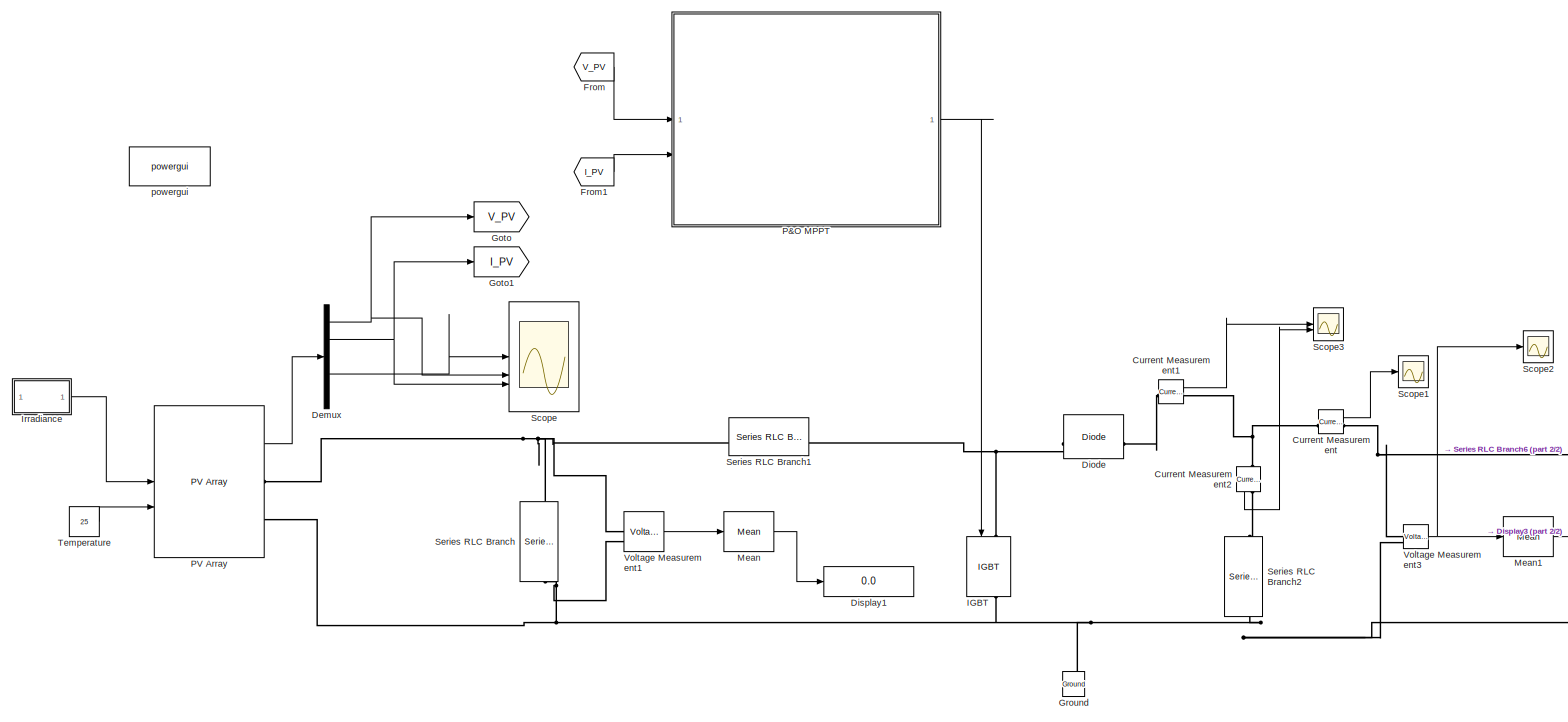
[diagram: root canvas - part 1/2, most of the canvas]
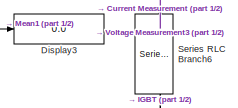
[diagram: root canvas - part 2/2, bottom right region]
MODEL slx_ca88354ca94a
KIND model
CONFIG AbsTol = auto
CONFIG EnableMultiTasking = off
CONFIG FixedStep = auto
CONFIG MaxStep = auto
CONFIG MinStep = auto
CONFIG RelTol = 1e-3
CONFIG SampleTimeConstraint = Unconstrained
CONFIG SolverName = VariableStepAuto
CONFIG StartTime = 0.0
CONFIG StopTime = 10.0
BLOCK [Reference] Current Measurement  REF=spsCurrentMeasurementLib/Current Measurement
  LibrarySourceBlock = sps_lib/Sensors and Measurements/Current Measurement
  SourceBlock = spsCurrentMeasurementLib/Current Measurement
  SourceType = Current Measurement
  UserDataPersistent = on
BLOCK [Reference] Current Measurement1  REF=spsCurrentMeasurementLib/Current Measurement
  LibrarySourceBlock = sps_lib/Sensors and Measurements/Current Measurement
  SourceBlock = spsCurrentMeasurementLib/Current Measurement
  SourceType = Current Measurement
  UserDataPersistent = on
BLOCK [Reference] Current Measurement2  REF=spsCurrentMeasurementLib/Current Measurement
  LibrarySourceBlock = sps_lib/Sensors and Measurements/Current Measurement
  NameLocation = left
  SourceBlock = spsCurrentMeasurementLib/Current Measurement
  SourceType = Current Measurement
  UserDataPersistent = on
BLOCK [Demux] Demux
  Outputs = 5
BLOCK [Reference] Diode  REF=spsDiodeLib/Diode
  LibrarySourceBlock = sps_lib/Power Electronics/Diode
  SourceBlock = spsDiodeLib/Diode
  SourceType = Diode
BLOCK [Display] Display1
  Decimation = 1
BLOCK [Display] Display3
  Decimation = 1
BLOCK [From] From
  GotoTag = V_PV
BLOCK [From] From1
  GotoTag = I_PV
BLOCK [Goto] Goto
  GotoTag = V_PV
BLOCK [Goto] Goto1
  GotoTag = I_PV
BLOCK [Reference] Ground  REF=spsGroundLib/Ground
  LibrarySourceBlock = sps_lib/Utilities/Ground
  NameLocation = right
  SourceBlock = spsGroundLib/Ground
  SourceType = Ground
BLOCK [Reference] IGBT  REF=spsIGBTLib/IGBT
  LibrarySourceBlock = sps_lib/Power Electronics/IGBT
  NameLocation = left
  SourceBlock = spsIGBTLib/IGBT
  SourceType = IGBT
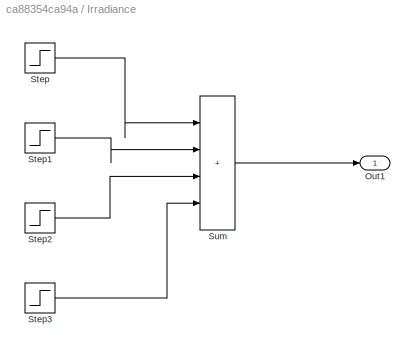
BLOCK [SubSystem] Irradiance
BLOCK [Outport] Irradiance/Out1
BLOCK [Step] Irradiance/Step
  After = 1200
  Before = 1200
  SampleTime = 0
  Time = 0
BLOCK [Step] Irradiance/Step1
  After = -300
  SampleTime = 0
  Time = 3
BLOCK [Step] Irradiance/Step2
  After = -250
  SampleTime = 0
  Time = 5
BLOCK [Step] Irradiance/Step3
  After = 350
  SampleTime = 0
  Time = 8
BLOCK [Sum] Irradiance/Sum
  IconShape = rectangular
  Inputs = |++++
BLOCK [Reference] Mean  REF=spsMeanLib/Mean
  LibrarySourceBlock = sps_lib/Sensors and Measurements/Mean
  SourceBlock = spsMeanLib/Mean
  SourceType = Mean
BLOCK [Reference] Mean1  REF=spsMeanLib/Mean
  LibrarySourceBlock = sps_lib/Sensors and Measurements/Mean
  SourceBlock = spsMeanLib/Mean
  SourceType = Mean
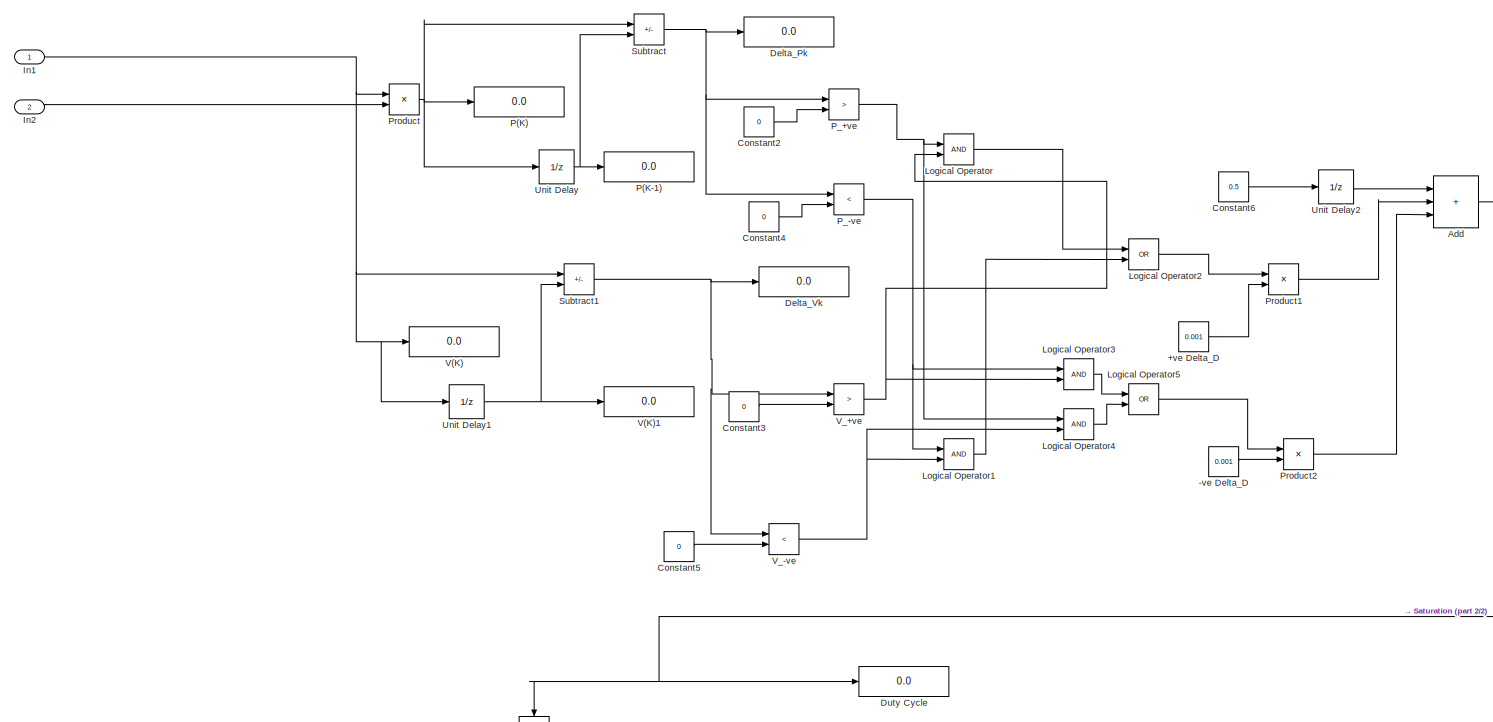
[diagram: P&O MPPT - part 1/2, full width, top band]
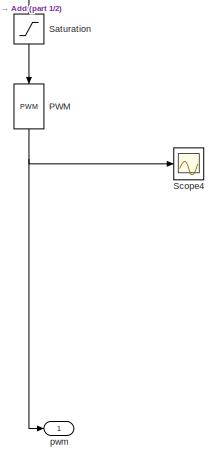
[diagram: P&O MPPT - part 2/2, bottom center region]
BLOCK [SubSystem] P&O MPPT
BLOCK [Constant] P&O MPPT/+ve Delta_D
  Value = 0.001
BLOCK [Constant] P&O MPPT/-ve Delta_D
  Value = 0.001
BLOCK [Sum] P&O MPPT/Add
  IconShape = rectangular
  Inputs = +++
BLOCK [Constant] P&O MPPT/Constant2
  Value = 0
BLOCK [Constant] P&O MPPT/Constant3
  Value = 0
BLOCK [Constant] P&O MPPT/Constant4
  Value = 0
BLOCK [Constant] P&O MPPT/Constant5
  Value = 0
BLOCK [Constant] P&O MPPT/Constant6
  Value = 0.5
BLOCK [Display] P&O MPPT/Delta_Pk
  Decimation = 1
BLOCK [Display] P&O MPPT/Delta_Vk
  Decimation = 1
BLOCK [Display] P&O MPPT/Duty Cycle
  Decimation = 1
BLOCK [Inport] P&O MPPT/In1
BLOCK [Inport] P&O MPPT/In2
  Port = 2
BLOCK [Logic] P&O MPPT/Logical Operator
  AllPortsSameDT = off
  OutDataTypeStr = boolean
BLOCK [Logic] P&O MPPT/Logical Operator1
  AllPortsSameDT = off
  OutDataTypeStr = boolean
BLOCK [Logic] P&O MPPT/Logical Operator2
  AllPortsSameDT = off
  Operator = OR
  OutDataTypeStr = boolean
BLOCK [Logic] P&O MPPT/Logical Operator3
  AllPortsSameDT = off
  OutDataTypeStr = boolean
BLOCK [Logic] P&O MPPT/Logical Operator4
  AllPortsSameDT = off
  OutDataTypeStr = boolean
BLOCK [Logic] P&O MPPT/Logical Operator5
  AllPortsSameDT = off
  Operator = OR
  OutDataTypeStr = boolean
BLOCK [Display] P&O MPPT/P(K)
  Decimation = 1
BLOCK [Display] P&O MPPT/P(K-1)
  Decimation = 1
BLOCK [Reference] P&O MPPT/PWM  REF=simulink/Discontinuities/PWM
  DisableCoverage = on
  NameLocation = left
  SourceBlock = simulink/Discontinuities/PWM
  SourceType = PWM
BLOCK [RelationalOperator] P&O MPPT/P_+ve
  InputSameDT = off
  Operator = >
  OutDataTypeStr = boolean
  RndMeth = Simplest
BLOCK [RelationalOperator] P&O MPPT/P_-ve
  InputSameDT = off
  Operator = <
  OutDataTypeStr = boolean
  RndMeth = Simplest
BLOCK [Product] P&O MPPT/Product
BLOCK [Product] P&O MPPT/Product1
BLOCK [Product] P&O MPPT/Product2
BLOCK [Saturate] P&O MPPT/Saturation
  LowerLimit = 0.1
  NameLocation = left
  UpperLimit = 0.9
BLOCK [Scope] P&O MPPT/Scope4
  Floating = off
  NumInputPorts = 1
  ScopeSpecificationString = Simulink.scopes.TimeScopeBlockCfg('CurrentConfiguration', extmgr.ConfigurationSet(extmgr.Configuration('Core','General UI',true),extmgr.Configuration('Core','Source UI',true),extmgr.Configuration('Sources','WiredSimulink',true),extmgr.Configuration('Visuals','Time Domain',true,'SerializedDisplays',{struct('MinYLimReal','-0.125','MaxYLimReal','1.125','YLabelReal','','MinYLimMag','0.00000','MaxYLimM...<+1526ch>
BLOCK [Sum] P&O MPPT/Subtract
  IconShape = rectangular
  Inputs = +-
BLOCK [Sum] P&O MPPT/Subtract1
  IconShape = rectangular
  Inputs = +-
BLOCK [UnitDelay] P&O MPPT/Unit Delay
  HasFrameUpgradeWarning = on
  SampleTime = -1
BLOCK [UnitDelay] P&O MPPT/Unit Delay1
  HasFrameUpgradeWarning = on
  SampleTime = -1
BLOCK [UnitDelay] P&O MPPT/Unit Delay2
  HasFrameUpgradeWarning = on
  SampleTime = -1
BLOCK [Display] P&O MPPT/V(K)
  Decimation = 1
BLOCK [Display] P&O MPPT/V(K)1
  Decimation = 1
BLOCK [RelationalOperator] P&O MPPT/V_+ve
  InputSameDT = off
  Operator = >
  OutDataTypeStr = boolean
  RndMeth = Simplest
BLOCK [RelationalOperator] P&O MPPT/V_-ve
  InputSameDT = off
  Operator = <
  OutDataTypeStr = boolean
  RndMeth = Simplest
BLOCK [Outport] P&O MPPT/pwm
BLOCK [Reference] PV Array  REF=spsPVArrayLib/PV Array
  LibrarySourceBlock = sps_lib/Sources/PV Array
  SourceBlock = spsPVArrayLib/PV Array
  SourceType = PV array
BLOCK [Scope] Scope
  Floating = off
  NumInputPorts = 5
  ScopeSpecificationString = Simulink.scopes.TimeScopeBlockCfg('CurrentConfiguration', extmgr.ConfigurationSet(extmgr.Configuration('Core','General UI',true),extmgr.Configuration('Core','Source UI',true),extmgr.Configuration('Sources','WiredSimulink',true,'DataLoggingVariableName','ScopeData1'),extmgr.Configuration('Visuals','Time Domain',true,'SerializedDisplays',{struct('MinYLimReal','581.25','MaxYLimReal','1268.75','YLabel...<+3397ch>
BLOCK [Scope] Scope1
  Floating = off
  NumInputPorts = 1
  ScopeSpecificationString = Simulink.scopes.TimeScopeBlockCfg('CurrentConfiguration', extmgr.ConfigurationSet(extmgr.Configuration('Core','General UI',true),extmgr.Configuration('Core','Source UI',true),extmgr.Configuration('Sources','WiredSimulink',true,'DataLoggingVariableName','ScopeData2'),extmgr.Configuration('Visuals','Time Domain',true,'SerializedDisplays',{struct('MinYLimReal','-3.53623','MaxYLimReal','31.82607','YLa...<+1571ch>
BLOCK [Scope] Scope2
  Floating = off
  NumInputPorts = 1
  ScopeSpecificationString = Simulink.scopes.TimeScopeBlockCfg('CurrentConfiguration', extmgr.ConfigurationSet(extmgr.Configuration('Core','General UI',true),extmgr.Configuration('Core','Source UI',true),extmgr.Configuration('Sources','WiredSimulink',true,'DataLoggingVariableName','ScopeData3'),extmgr.Configuration('Visuals','Time Domain',true,'SerializedDisplays',{struct('MinYLimReal','-29.10486','MaxYLimReal','261.94372','Y...<+1551ch>
BLOCK [Scope] Scope3
  Floating = off
  NumInputPorts = 2
  ScopeSpecificationString = Simulink.scopes.TimeScopeBlockCfg('CurrentConfiguration', extmgr.ConfigurationSet(extmgr.Configuration('Core','General UI',true),extmgr.Configuration('Core','Source UI',true),extmgr.Configuration('Sources','WiredSimulink',true,'DataLoggingVariableName','ScopeData4'),extmgr.Configuration('Visuals','Time Domain',true,'SerializedDisplays',{struct('MinYLimReal','-1.13646','MaxYLimReal','8.81548','YLab...<+2426ch>
BLOCK [Reference] Series RLC Branch  REF=spsSeriesRLCBranchLib/Series RLC Branch
  LibrarySourceBlock = sps_lib/Passives/Series RLC Branch
  NameLocation = left
  SourceBlock = spsSeriesRLCBranchLib/Series RLC Branch
  SourceType = Series RLC Branch
BLOCK [Reference] Series RLC Branch1  REF=spsSeriesRLCBranchLib/Series RLC Branch
  LibrarySourceBlock = sps_lib/Passives/Series RLC Branch
  SourceBlock = spsSeriesRLCBranchLib/Series RLC Branch
  SourceType = Series RLC Branch
BLOCK [Reference] Series RLC Branch2  REF=spsSeriesRLCBranchLib/Series RLC Branch
  LibrarySourceBlock = sps_lib/Passives/Series RLC Branch
  NameLocation = left
  SourceBlock = spsSeriesRLCBranchLib/Series RLC Branch
  SourceType = Series RLC Branch
BLOCK [Reference] Series RLC Branch6  REF=spsSeriesRLCBranchLib/Series RLC Branch
  LibrarySourceBlock = sps_lib/Passives/Series RLC Branch
  NameLocation = left
  SourceBlock = spsSeriesRLCBranchLib/Series RLC Branch
  SourceType = Series RLC Branch
BLOCK [Constant] Temperature
  Value = 25
BLOCK [Reference] Voltage Measurement1  REF=spsVoltageMeasurementLib/Voltage Measurement
  LibrarySourceBlock = sps_lib/Sensors and Measurements/Voltage Measurement
  SourceBlock = spsVoltageMeasurementLib/Voltage Measurement
  SourceType = Voltage Measurement
  UserDataPersistent = on
BLOCK [Reference] Voltage Measurement3  REF=spsVoltageMeasurementLib/Voltage Measurement
  LibrarySourceBlock = sps_lib/Sensors and Measurements/Voltage Measurement
  SourceBlock = spsVoltageMeasurementLib/Voltage Measurement
  SourceType = Voltage Measurement
  UserDataPersistent = on
BLOCK [Reference] powergui  REF=sps_lib/powergui
  LibrarySourceBlock = sps_lib/powergui
  Priority = 1
  SourceBlock = sps_lib/powergui
  SourceType = PSB option menu block
LINE Current Measurement1:1 -> Scope3:1
LINE Current Measurement2:1 -> Scope3:2
LINE Current Measurement:1 -> Scope1:1
NET Demux:1 -> Goto:1, Scope:2
NET Demux:2 -> Goto1:1, Scope:3
LINE Demux:4 -> Scope:1
LINE From1:1 -> P&O MPPT:2
LINE From:1 -> P&O MPPT:1
LINE Irradiance/Step1:1 -> Irradiance/Sum:2
LINE Irradiance/Step2:1 -> Irradiance/Sum:3
LINE Irradiance/Step3:1 -> Irradiance/Sum:4
LINE Irradiance/Step:1 -> Irradiance/Sum:1
LINE Irradiance/Sum:1 -> Irradiance/Out1:1
LINE Irradiance:1 -> PV Array:1
LINE Mean1:1 -> Display3:1
LINE Mean:1 -> Display1:1
LINE P&O MPPT/+ve Delta_D:1 -> P&O MPPT/Product1:2
LINE P&O MPPT/-ve Delta_D:1 -> P&O MPPT/Product2:2
NET P&O MPPT/Add:1 -> P&O MPPT/Duty Cycle:1, P&O MPPT/Saturation:1
LINE P&O MPPT/Constant2:1 -> P&O MPPT/P_+ve:2
LINE P&O MPPT/Constant3:1 -> P&O MPPT/V_+ve:2
LINE P&O MPPT/Constant4:1 -> P&O MPPT/P_-ve:2
LINE P&O MPPT/Constant5:1 -> P&O MPPT/V_-ve:2
LINE P&O MPPT/Constant6:1 -> P&O MPPT/Unit Delay2:1
NET P&O MPPT/In1:1 -> P&O MPPT/Product:1, P&O MPPT/Subtract1:1, P&O MPPT/Unit Delay1:1, P&O MPPT/V(K):1
LINE P&O MPPT/In2:1 -> P&O MPPT/Product:2
LINE P&O MPPT/Logical Operator1:1 -> P&O MPPT/Logical Operator2:2
LINE P&O MPPT/Logical Operator2:1 -> P&O MPPT/Product1:1
LINE P&O MPPT/Logical Operator3:1 -> P&O MPPT/Logical Operator5:1
LINE P&O MPPT/Logical Operator4:1 -> P&O MPPT/Logical Operator5:2
LINE P&O MPPT/Logical Operator5:1 -> P&O MPPT/Product2:1
LINE P&O MPPT/Logical Operator:1 -> P&O MPPT/Logical Operator2:1
NET P&O MPPT/PWM:1 -> P&O MPPT/Scope4:1, P&O MPPT/pwm:1
NET P&O MPPT/P_+ve:1 -> P&O MPPT/Logical Operator4:1, P&O MPPT/Logical Operator:1
NET P&O MPPT/P_-ve:1 -> P&O MPPT/Logical Operator1:1, P&O MPPT/Logical Operator3:1
LINE P&O MPPT/Product1:1 -> P&O MPPT/Add:2
LINE P&O MPPT/Product2:1 -> P&O MPPT/Add:3
NET P&O MPPT/Product:1 -> P&O MPPT/P(K):1, P&O MPPT/Subtract:1, P&O MPPT/Unit Delay:1
LINE P&O MPPT/Saturation:1 -> P&O MPPT/PWM:1
NET P&O MPPT/Subtract1:1 -> P&O MPPT/Delta_Vk:1, P&O MPPT/V_+ve:1, P&O MPPT/V_-ve:1
NET P&O MPPT/Subtract:1 -> P&O MPPT/Delta_Pk:1, P&O MPPT/P_+ve:1, P&O MPPT/P_-ve:1
NET P&O MPPT/Unit Delay1:1 -> P&O MPPT/Subtract1:2, P&O MPPT/V(K)1:1
LINE P&O MPPT/Unit Delay2:1 -> P&O MPPT/Add:1
NET P&O MPPT/Unit Delay:1 -> P&O MPPT/P(K-1):1, P&O MPPT/Subtract:2
NET P&O MPPT/V_+ve:1 -> P&O MPPT/Logical Operator3:2, P&O MPPT/Logical Operator:2
NET P&O MPPT/V_-ve:1 -> P&O MPPT/Logical Operator1:2, P&O MPPT/Logical Operator4:2
LINE P&O MPPT:1 -> IGBT:1
LINE PV Array:1 -> Demux:1
LINE Temperature:1 -> PV Array:2
LINE Voltage Measurement1:1 -> Mean:1
NET Voltage Measurement3:1 -> Mean1:1, Scope2:1
PLINE Current Measurement1:LConn1 -- Diode:RConn1
PNET net1: Current Measurement1:RConn1 -- Current Measurement2:LConn1 -- Current Measurement:LConn1
PLINE Current Measurement2:RConn1 -- Series RLC Branch2:LConn1
PNET net2: Current Measurement:RConn1 -- Series RLC Branch6:LConn1 -- Voltage Measurement3:LConn1
PNET net3: Diode:LConn1 -- IGBT:LConn1 -- Series RLC Branch1:RConn1
PNET net4: Ground:LConn1 -- IGBT:RConn1 -- PV Array:RConn2 -- Series RLC Branch2:RConn1 -- Series RLC Branch6:RConn1 -- Series RLC Branch:RConn1 -- Voltage Measurement1:LConn2 -- Voltage Measurement3:LConn2
PNET net5: PV Array:RConn1 -- Series RLC Branch1:LConn1 -- Series RLC Branch:LConn1 -- Voltage Measurement1:LConn1
note: NET lines group one-source signal fan-out (src -> all destinations, sorted); 1:1 wires keep LINE; PNET lines group multi-terminal physical nets as a canonical sorted terminal list (undirected conserving connections); 2-terminal nets keep the pairwise PLINE form
